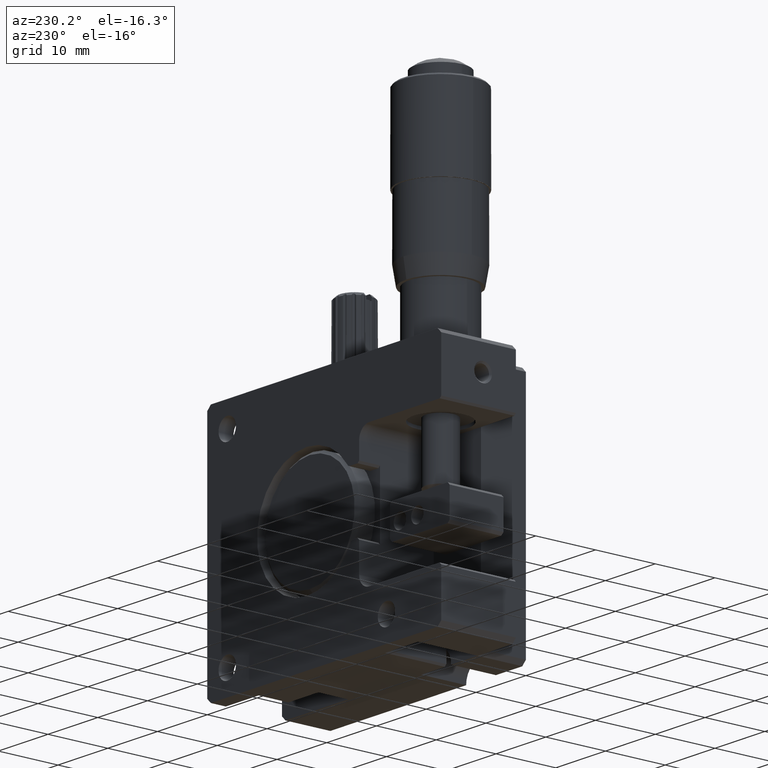
[diagram: clean part render]
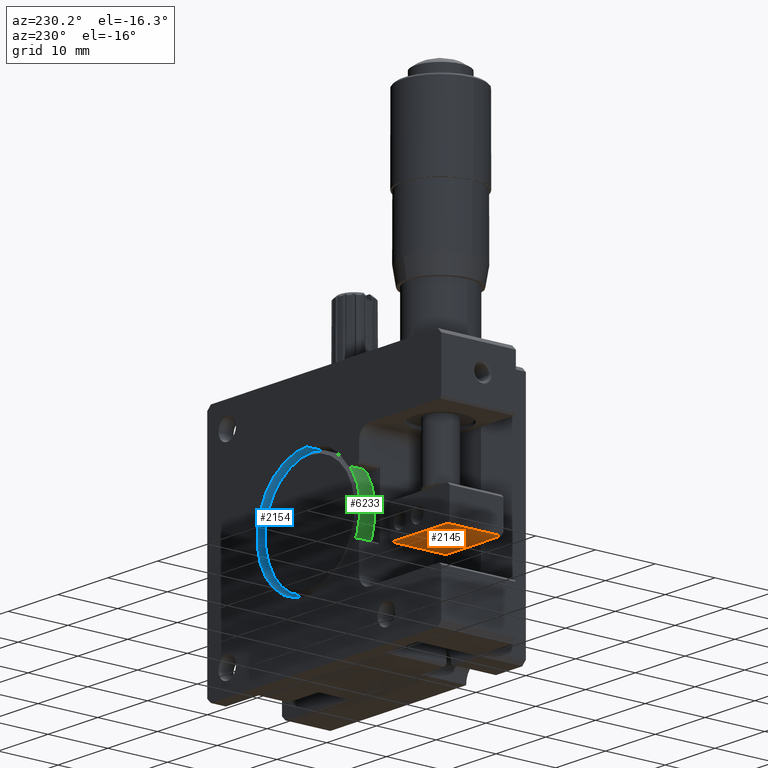
[diagram: same view with three faces highlighted in distinct colors, each labeled with its STEP entity id]
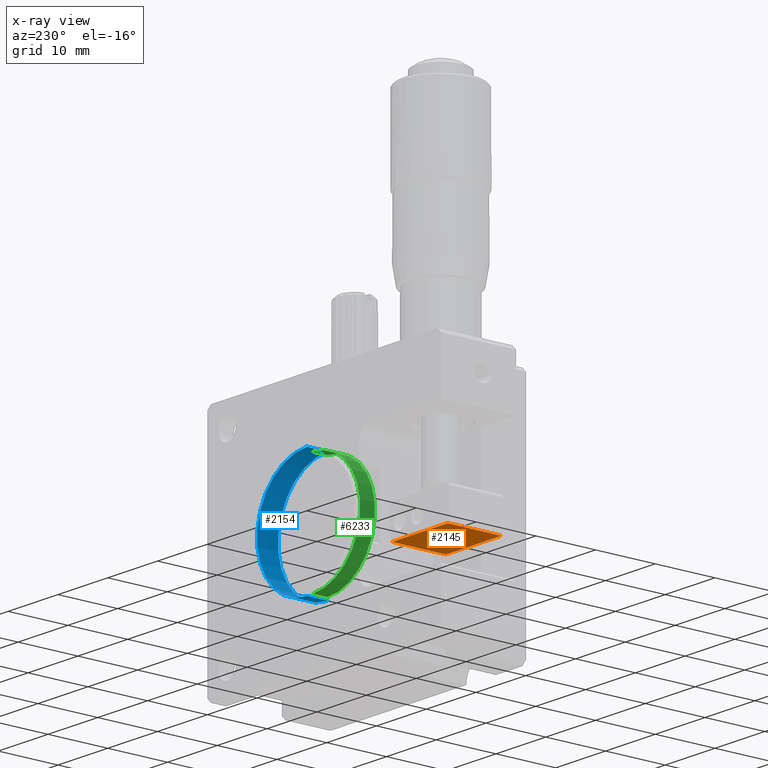
[diagram: x-ray of the same camera — body ghosted, the three highlighted faces saturated]
A machine part, auxiliary view with three faces highlighted in distinct colors.
The next image is the same camera in x-ray (body ghosted, the three faces saturated) — at least one of them is partly hidden behind the body in this view.
Their STEP definitions:

[orange] entity #2145 — the highlighted planar face has unit normal (0, 0, 1).
#66 = VERTEX_POINT ( 'NONE', #5752 ) ;
#79 = VERTEX_POINT ( 'NONE', #5753 ) ;
#86 = VERTEX_POINT ( 'NONE', #5757 ) ;
#92 = VERTEX_POINT ( 'NONE', #5780 ) ;
#558 = ORIENTED_EDGE ( 'NONE', *, *, #6862, .F. ) ;
#569 = ORIENTED_EDGE ( 'NONE', *, *, #6875, .T. ) ;
#597 = ORIENTED_EDGE ( 'NONE', *, *, #6857, .F. ) ;
#605 = ORIENTED_EDGE ( 'NONE', *, *, #10392, .F. ) ;
#614 = ORIENTED_EDGE ( 'NONE', *, *, #6934, .F. ) ;
#1575 = AXIS2_PLACEMENT_3D ( 'NONE', #5295, #5276, #5297 ) ;
#2145 = ADVANCED_FACE ( 'NONE', ( #6677 ), #5293, .F. ) ;
#2676 = EDGE_LOOP ( 'NONE', ( #569, #605, #597, #558, #614 ) ) ;
#3845 = VERTEX_POINT ( 'NONE', #6942 ) ;
#3961 = CARTESIAN_POINT ( 'NONE',  ( -4.089999999999999000, 16.50000000000000000, -25.00000000000000000 ) ) ;
#3984 = DIRECTION ( 'NONE',  ( 0.0000000000000000000, -1.000000000000000000, -0.0000000000000000000 ) ) ;
#5276 = DIRECTION ( 'NONE',  ( 0.0000000000000000000, 0.0000000000000000000, 1.000000000000000000 ) ) ;
#5293 = PLANE ( 'NONE',  #1575 ) ;
#5295 = CARTESIAN_POINT ( 'NONE',  ( 7.089999999999999900, 16.50000000000000000, -25.00000000000000000 ) ) ;
#5297 = DIRECTION ( 'NONE',  ( 1.000000000000000000, 0.0000000000000000000, -0.0000000000000000000 ) ) ;
#5752 = CARTESIAN_POINT ( 'NONE',  ( 7.090000000000000700, 7.500000000000000000, -25.00000000000000000 ) ) ;
#5753 = CARTESIAN_POINT ( 'NONE',  ( -4.089999999999999000, 16.50000000000000000, -25.00000000000000000 ) ) ;
#5757 = CARTESIAN_POINT ( 'NONE',  ( -4.089999999999999900, 7.499999999999998200, -25.00000000000000000 ) ) ;
#5780 = CARTESIAN_POINT ( 'NONE',  ( -2.168404344971012800E-016, 7.500000000000000000, -25.00000000000000000 ) ) ;
#6677 = FACE_OUTER_BOUND ( 'NONE', #2676, .T. ) ;
#6857 = EDGE_CURVE ( 'NONE', #3845, #79, #9940, .T. ) ;
#6862 = EDGE_CURVE ( 'NONE', #66, #3845, #9970, .T. ) ;
#6875 = EDGE_CURVE ( 'NONE', #92, #86, #10014, .T. ) ;
#6934 = EDGE_CURVE ( 'NONE', #92, #66, #8973, .T. ) ;
#6942 = CARTESIAN_POINT ( 'NONE',  ( 7.090000000000000700, 16.50000000000000000, -25.00000000000000000 ) ) ;
#8406 = CARTESIAN_POINT ( 'NONE',  ( 7.089999999999999900, 16.50000000000000000, -25.00000000000000000 ) ) ;
#8408 = DIRECTION ( 'NONE',  ( -0.0000000000000000000, 1.000000000000000000, 0.0000000000000000000 ) ) ;
#8414 = CARTESIAN_POINT ( 'NONE',  ( 7.089999999999999900, 16.50000000000000000, -25.00000000000000000 ) ) ;
#8424 = DIRECTION ( 'NONE',  ( -1.000000000000000000, -0.0000000000000000000, 0.0000000000000000000 ) ) ;
#8442 = CARTESIAN_POINT ( 'NONE',  ( 0.0000000000000000000, 7.500000000000000000, -25.00000000000000000 ) ) ;
#8467 = DIRECTION ( 'NONE',  ( -1.000000000000000000, -0.0000000000000000000, 0.0000000000000000000 ) ) ;
#8610 = CARTESIAN_POINT ( 'NONE',  ( 0.0000000000000000000, 7.500000000000000000, -25.00000000000000000 ) ) ;
#8630 = DIRECTION ( 'NONE',  ( 1.000000000000000000, 0.0000000000000000000, -0.0000000000000000000 ) ) ;
#8907 = VECTOR ( 'NONE', #8467, 1000.000000000000000 ) ;
#8930 = VECTOR ( 'NONE', #8630, 1000.000000000000000 ) ;
#8973 = LINE ( 'NONE', #8610, #8930 ) ;
#9564 = LINE ( 'NONE', #3961, #9582 ) ;
#9582 = VECTOR ( 'NONE', #3984, 1000.000000000000000 ) ;
#9940 = LINE ( 'NONE', #8414, #9945 ) ;
#9945 = VECTOR ( 'NONE', #8424, 1000.000000000000000 ) ;
#9962 = VECTOR ( 'NONE', #8408, 1000.000000000000000 ) ;
#9970 = LINE ( 'NONE', #8406, #9962 ) ;
#10014 = LINE ( 'NONE', #8442, #8907 ) ;
#10392 = EDGE_CURVE ( 'NONE', #79, #86, #9564, .T. ) ;

[blue] entity #2154 — the highlighted cylindrical surface (partial cylindrical patch) has radius 10 mm, axis along (0, 1, 0).
#11 = VERTEX_POINT ( 'NONE', #5729 ) ;
#20 = VERTEX_POINT ( 'NONE', #5710 ) ;
#48 = VERTEX_POINT ( 'NONE', #5789 ) ;
#105 = VERTEX_POINT ( 'NONE', #5819 ) ;
#856 = AXIS2_PLACEMENT_3D ( 'NONE', #8055, #8074, #8056 ) ;
#862 = AXIS2_PLACEMENT_3D ( 'NONE', #8100, #8121, #8103 ) ;
#1556 = AXIS2_PLACEMENT_3D ( 'NONE', #5291, #5311, #5289 ) ;
#1841 = ORIENTED_EDGE ( 'NONE', *, *, #10110, .F. ) ;
#1848 = ORIENTED_EDGE ( 'NONE', *, *, #10138, .F. ) ;
#1905 = ORIENTED_EDGE ( 'NONE', *, *, #10153, .T. ) ;
#1935 = ORIENTED_EDGE ( 'NONE', *, *, #10155, .F. ) ;
#2154 = ADVANCED_FACE ( 'NONE', ( #6685 ), #6689, .F. ) ;
#2756 = EDGE_LOOP ( 'NONE', ( #1841, #1848, #1905, #1935 ) ) ;
#5289 = DIRECTION ( 'NONE',  ( 0.0000000000000000000, 0.0000000000000000000, 1.000000000000000000 ) ) ;
#5291 = CARTESIAN_POINT ( 'NONE',  ( 19.99989338872800100, 16.50000000000000000, -20.00038109950300200 ) ) ;
#5311 = DIRECTION ( 'NONE',  ( 0.0000000000000000000, 1.000000000000000000, 0.0000000000000000000 ) ) ;
#5710 = CARTESIAN_POINT ( 'NONE',  ( 19.99989338872800100, 16.50000000000000000, -10.00038109950300000 ) ) ;
#5729 = CARTESIAN_POINT ( 'NONE',  ( 19.99989338872800100, 20.00000000000000000, -10.00038109950300000 ) ) ;
#5789 = CARTESIAN_POINT ( 'NONE',  ( 19.99989338872800100, 16.50000000000000000, -30.00038109950300200 ) ) ;
#5819 = CARTESIAN_POINT ( 'NONE',  ( 19.99989338872800100, 20.00000000000000000, -30.00038109950300200 ) ) ;
#6685 = FACE_OUTER_BOUND ( 'NONE', #2756, .T. ) ;
#6689 = CYLINDRICAL_SURFACE ( 'NONE', #1556, 10.00000000000000000 ) ;
#8055 = CARTESIAN_POINT ( 'NONE',  ( 19.99989338872800100, 16.50000000000000000, -20.00038109950300200 ) ) ;
#8056 = DIRECTION ( 'NONE',  ( 0.0000000000000000000, 0.0000000000000000000, 1.000000000000000000 ) ) ;
#8074 = DIRECTION ( 'NONE',  ( 0.0000000000000000000, 1.000000000000000000, 0.0000000000000000000 ) ) ;
#8100 = CARTESIAN_POINT ( 'NONE',  ( 19.99989338872800100, 20.00000000000000000, -20.00038109950300200 ) ) ;
#8103 = DIRECTION ( 'NONE',  ( 0.0000000000000000000, 0.0000000000000000000, 1.000000000000000000 ) ) ;
#8121 = DIRECTION ( 'NONE',  ( -0.0000000000000000000, -1.000000000000000000, -0.0000000000000000000 ) ) ;
#8125 = CARTESIAN_POINT ( 'NONE',  ( 19.99989338872800100, 16.50000000000000000, -10.00038109950300000 ) ) ;
#8126 = DIRECTION ( 'NONE',  ( 0.0000000000000000000, 1.000000000000000000, 0.0000000000000000000 ) ) ;
#8822 = DIRECTION ( 'NONE',  ( 0.0000000000000000000, 1.000000000000000000, 0.0000000000000000000 ) ) ;
#8834 = CARTESIAN_POINT ( 'NONE',  ( 19.99989338872800100, 16.50000000000000000, -30.00038109950300200 ) ) ;
#9117 = VECTOR ( 'NONE', #8822, 1000.000000000000000 ) ;
#9119 = LINE ( 'NONE', #8834, #9117 ) ;
#9176 = CIRCLE ( 'NONE', #856, 10.00000000000000000 ) ;
#9178 = CIRCLE ( 'NONE', #862, 10.00000000000000000 ) ;
#9215 = LINE ( 'NONE', #8125, #9216 ) ;
#9216 = VECTOR ( 'NONE', #8126, 1000.000000000000000 ) ;
#10110 = EDGE_CURVE ( 'NONE', #48, #105, #9119, .T. ) ;
#10138 = EDGE_CURVE ( 'NONE', #20, #48, #9176, .T. ) ;
#10153 = EDGE_CURVE ( 'NONE', #20, #11, #9215, .T. ) ;
#10155 = EDGE_CURVE ( 'NONE', #105, #11, #9178, .T. ) ;

[green] entity #6233 — the highlighted cylindrical surface (partial cylindrical patch) has radius 9.5 mm, axis along (0, -1, 0).
#106 = VERTEX_POINT ( 'NONE', #5810 ) ;
#643 = ORIENTED_EDGE ( 'NONE', *, *, #10396, .T. ) ;
#698 = ORIENTED_EDGE ( 'NONE', *, *, #10411, .F. ) ;
#704 = ORIENTED_EDGE ( 'NONE', *, *, #10398, .T. ) ;
#718 = ORIENTED_EDGE ( 'NONE', *, *, #10382, .T. ) ;
#1117 = AXIS2_PLACEMENT_3D ( 'NONE', #3988, #3989, #4010 ) ;
#1164 = AXIS2_PLACEMENT_3D ( 'NONE', #3964, #3974, #3983 ) ;
#1877 = AXIS2_PLACEMENT_3D ( 'NONE', #8307, #8308, #8311 ) ;
#2601 = EDGE_LOOP ( 'NONE', ( #698, #643, #704, #718 ) ) ;
#3847 = VERTEX_POINT ( 'NONE', #6948 ) ;
#3849 = VERTEX_POINT ( 'NONE', #6976 ) ;
#3864 = VERTEX_POINT ( 'NONE', #6978 ) ;
#3964 = CARTESIAN_POINT ( 'NONE',  ( 20.00000000000000000, 16.50000000000000000, -20.00000000000000000 ) ) ;
#3966 = DIRECTION ( 'NONE',  ( 0.0000000000000000000, -1.000000000000000000, 0.0000000000000000000 ) ) ;
#3974 = DIRECTION ( 'NONE',  ( -0.0000000000000000000, 1.000000000000000000, -0.0000000000000000000 ) ) ;
#3979 = CARTESIAN_POINT ( 'NONE',  ( 20.00000000000000000, -50.00000000000000000, -29.50000000000000000 ) ) ;
#3983 = DIRECTION ( 'NONE',  ( 0.0000000000000000000, 0.0000000000000000000, -1.000000000000000000 ) ) ;
#3988 = CARTESIAN_POINT ( 'NONE',  ( 20.00000000000000000, 19.00000000000000400, -20.00000000000000000 ) ) ;
#3989 = DIRECTION ( 'NONE',  ( 0.0000000000000000000, -1.000000000000000000, 0.0000000000000000000 ) ) ;
#3996 = DIRECTION ( 'NONE',  ( 0.0000000000000000000, -1.000000000000000000, 0.0000000000000000000 ) ) ;
#3997 = CARTESIAN_POINT ( 'NONE',  ( 20.00000000000000000, -50.00000000000000000, -10.50000000000000000 ) ) ;
#4010 = DIRECTION ( 'NONE',  ( 0.0000000000000000000, 0.0000000000000000000, -1.000000000000000000 ) ) ;
#5810 = CARTESIAN_POINT ( 'NONE',  ( 20.00000000000000000, 19.00000000000000400, -29.50000000000000000 ) ) ;
#6233 = ADVANCED_FACE ( 'NONE', ( #9880 ), #9919, .T. ) ;
#6948 = CARTESIAN_POINT ( 'NONE',  ( 20.00000000000000000, 16.50000000000000000, -29.50000000000000000 ) ) ;
#6976 = CARTESIAN_POINT ( 'NONE',  ( 20.00000000000000000, 16.50000000000000000, -10.50000000000000000 ) ) ;
#6978 = CARTESIAN_POINT ( 'NONE',  ( 20.00000000000000000, 19.00000000000000400, -10.50000000000000200 ) ) ;
#8307 = CARTESIAN_POINT ( 'NONE',  ( 20.00000000000000000, -50.00000000000000000, -20.00000000000000000 ) ) ;
#8308 = DIRECTION ( 'NONE',  ( 0.0000000000000000000, -1.000000000000000000, 0.0000000000000000000 ) ) ;
#8311 = DIRECTION ( 'NONE',  ( 0.0000000000000000000, 0.0000000000000000000, -1.000000000000000000 ) ) ;
#9518 = CIRCLE ( 'NONE', #1164, 9.499999999999998200 ) ;
#9590 = VECTOR ( 'NONE', #3966, 1000.000000000000000 ) ;
#9599 = VECTOR ( 'NONE', #3996, 1000.000000000000000 ) ;
#9606 = LINE ( 'NONE', #3979, #9590 ) ;
#9614 = LINE ( 'NONE', #3997, #9599 ) ;
#9616 = CIRCLE ( 'NONE', #1117, 9.499999999999998200 ) ;
#9880 = FACE_OUTER_BOUND ( 'NONE', #2601, .T. ) ;
#9919 = CYLINDRICAL_SURFACE ( 'NONE', #1877, 9.499999999999998200 ) ;
#10382 = EDGE_CURVE ( 'NONE', #3847, #3849, #9518, .T. ) ;
#10396 = EDGE_CURVE ( 'NONE', #3864, #106, #9616, .T. ) ;
#10398 = EDGE_CURVE ( 'NONE', #106, #3847, #9606, .T. ) ;
#10411 = EDGE_CURVE ( 'NONE', #3864, #3849, #9614, .T. ) ;